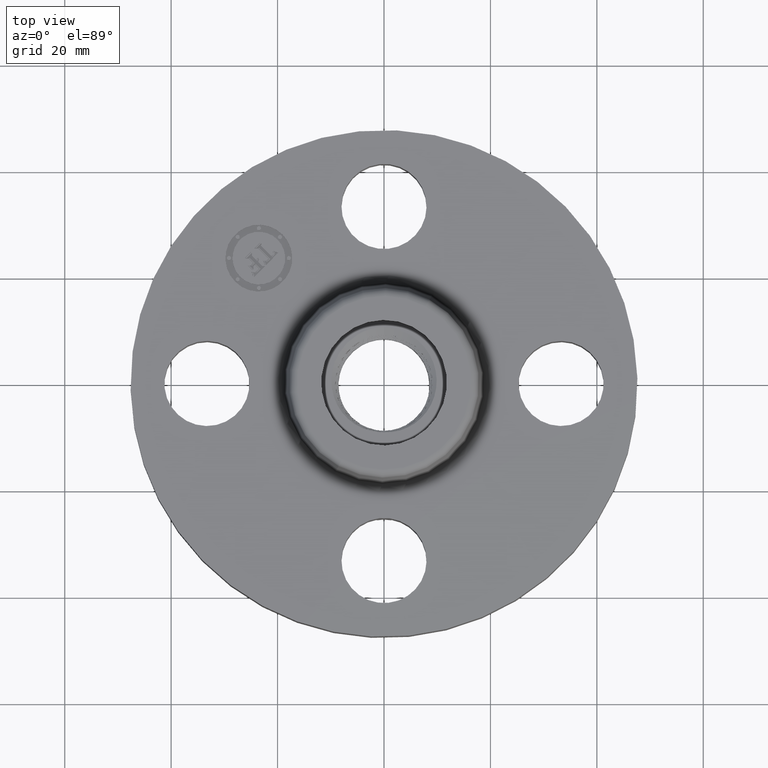
[diagram: clean part render]
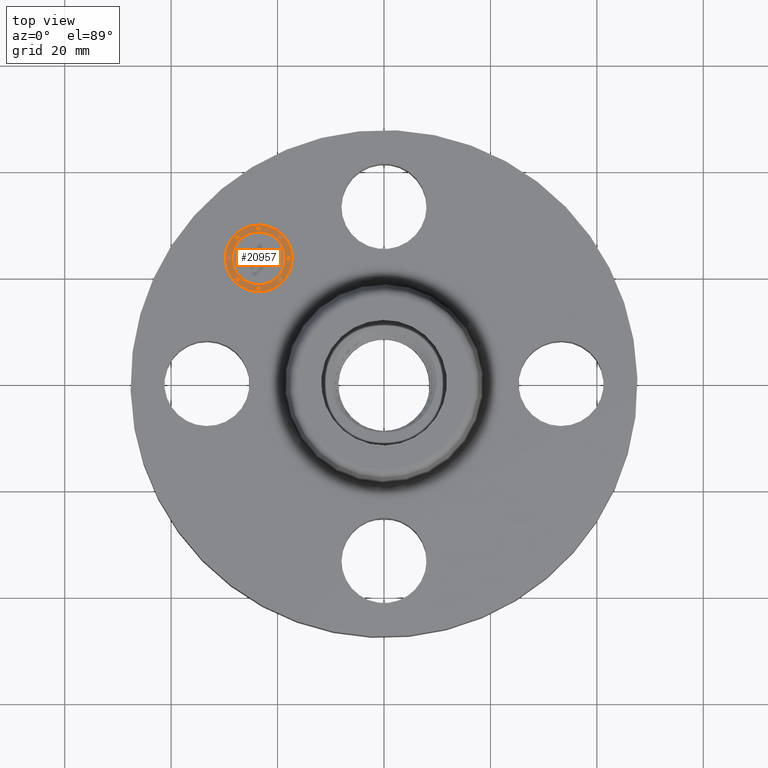
[diagram: same view with one face highlighted and labeled with its STEP entity id]
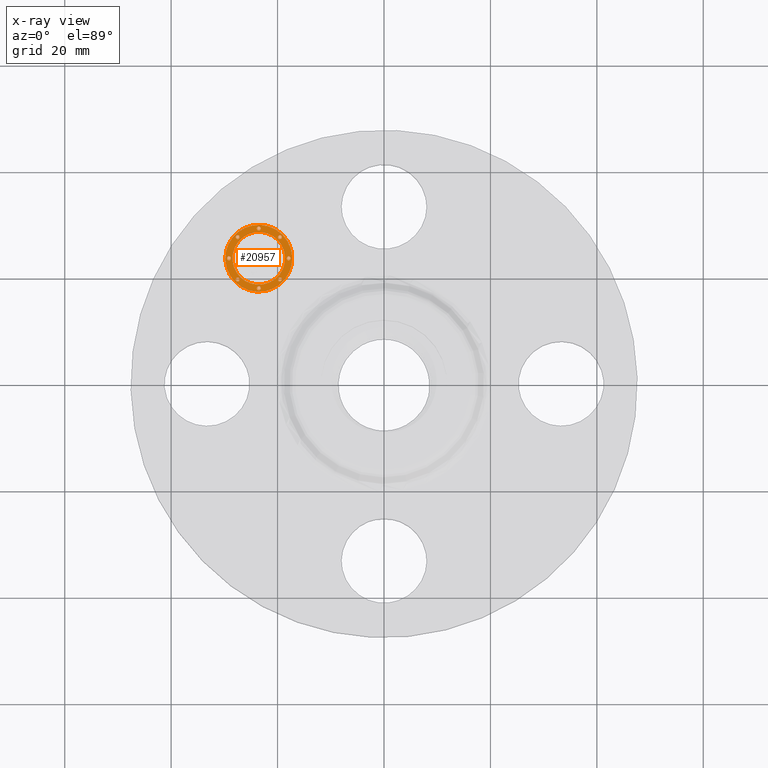
[diagram: x-ray of the same camera — body ghosted, the highlighted face saturated]
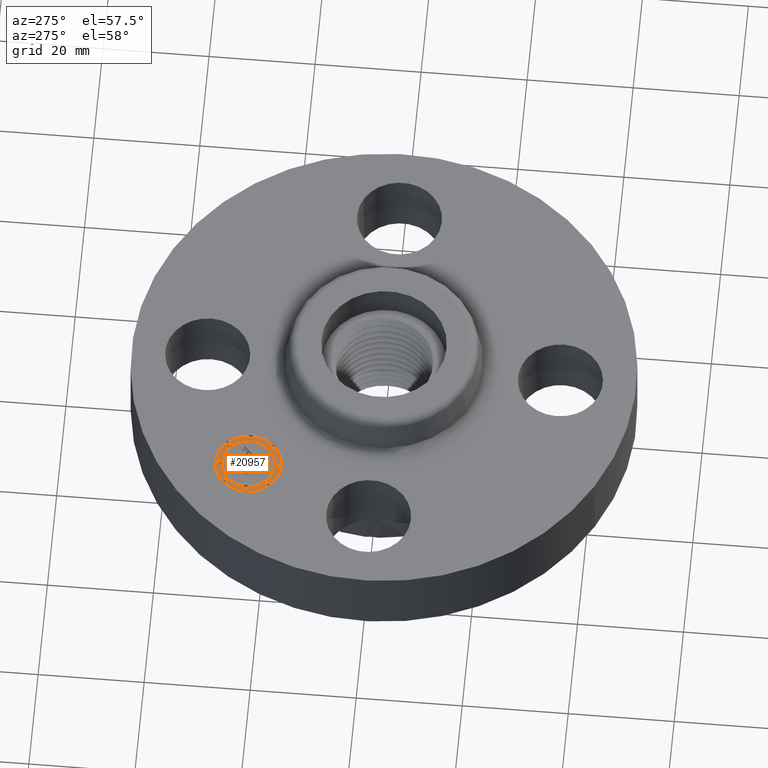
[diagram: same view with one face highlighted and labeled with its STEP entity id]
A machine part, top view. The second image highlights one B-rep face of the part: STEP entity #20957.
The next image is the same camera in x-ray: the body ghosted, the highlighted face saturated — about 0% of this face is hidden behind the body in this view.
A second angle (auxiliary view) of the same face is appended — the face is thin or edge-on in the first view.
In plain terms, the highlighted planar face has unit normal (0, -0, 1).
Its self-contained STEP definition (entity closure, byte-faithful):
#9608=AXIS2_PLACEMENT_3D('Plane Axis2P3D',#9605,#9606,#9607) ;
#20779=AXIS2_PLACEMENT_3D('Circle Axis2P3D',#20777,#20778,$) ;
#20788=AXIS2_PLACEMENT_3D('Circle Axis2P3D',#20786,#20787,$) ;
#20797=AXIS2_PLACEMENT_3D('Circle Axis2P3D',#20795,#20796,$) ;
#20806=AXIS2_PLACEMENT_3D('Circle Axis2P3D',#20804,#20805,$) ;
#20815=AXIS2_PLACEMENT_3D('Circle Axis2P3D',#20813,#20814,$) ;
#20824=AXIS2_PLACEMENT_3D('Circle Axis2P3D',#20822,#20823,$) ;
#20833=AXIS2_PLACEMENT_3D('Circle Axis2P3D',#20831,#20832,$) ;
#20842=AXIS2_PLACEMENT_3D('Circle Axis2P3D',#20840,#20841,$) ;
#20851=AXIS2_PLACEMENT_3D('Circle Axis2P3D',#20849,#20850,$) ;
#20860=AXIS2_PLACEMENT_3D('Circle Axis2P3D',#20858,#20859,$) ;
#20869=AXIS2_PLACEMENT_3D('Circle Axis2P3D',#20867,#20868,$) ;
#20878=AXIS2_PLACEMENT_3D('Circle Axis2P3D',#20876,#20877,$) ;
#20887=AXIS2_PLACEMENT_3D('Circle Axis2P3D',#20885,#20886,$) ;
#20896=AXIS2_PLACEMENT_3D('Circle Axis2P3D',#20894,#20895,$) ;
#20905=AXIS2_PLACEMENT_3D('Circle Axis2P3D',#20903,#20904,$) ;
#20914=AXIS2_PLACEMENT_3D('Circle Axis2P3D',#20912,#20913,$) ;
#20923=AXIS2_PLACEMENT_3D('Circle Axis2P3D',#20921,#20922,$) ;
#20932=AXIS2_PLACEMENT_3D('Circle Axis2P3D',#20930,#20931,$) ;
#20941=AXIS2_PLACEMENT_3D('Circle Axis2P3D',#20939,#20940,$) ;
#20950=AXIS2_PLACEMENT_3D('Circle Axis2P3D',#20948,#20949,$) ;
#9605=CARTESIAN_POINT('Axis2P3D Location',(0.,0.,0.545000000002)) ;
#20777=CARTESIAN_POINT('Axis2P3D Location',(-0.926309883358,0.926309883358,0.545000000002)) ;
#20781=CARTESIAN_POINT('Vertex',(-1.1013188117,0.751300955014,0.545000000002)) ;
#20783=CARTESIAN_POINT('Vertex',(-0.751300955014,1.1013188117,0.545000000002)) ;
#20786=CARTESIAN_POINT('Axis2P3D Location',(-0.926309883358,0.926309883358,0.545000000002)) ;
#20795=CARTESIAN_POINT('Axis2P3D Location',(-0.926309883358,0.926309883358,0.545000000002)) ;
#20799=CARTESIAN_POINT('Vertex',(-0.788424061026,1.06419570569,0.545000000002)) ;
#20801=CARTESIAN_POINT('Vertex',(-1.06419570569,0.788424061026,0.545000000002)) ;
#20804=CARTESIAN_POINT('Axis2P3D Location',(-0.926309883358,0.926309883358,0.545000000002)) ;
#20813=CARTESIAN_POINT('Axis2P3D Location',(-0.76986250802,0.76986250802,0.545000000002)) ;
#20817=CARTESIAN_POINT('Vertex',(-0.759255906302,0.780469109738,0.545000000002)) ;
#20819=CARTESIAN_POINT('Vertex',(-0.780469109738,0.759255906302,0.545000000002)) ;
#20822=CARTESIAN_POINT('Axis2P3D Location',(-0.76986250802,0.76986250802,0.545000000002)) ;
#20831=CARTESIAN_POINT('Axis2P3D Location',(-1.0827572587,0.76986250802,0.545000000002)) ;
#20835=CARTESIAN_POINT('Vertex',(-1.07215065698,0.780469109738,0.545000000002)) ;
#20837=CARTESIAN_POINT('Vertex',(-1.09336386041,0.759255906302,0.545000000002)) ;
#20840=CARTESIAN_POINT('Axis2P3D Location',(-1.0827572587,0.76986250802,0.545000000002)) ;
#20849=CARTESIAN_POINT('Axis2P3D Location',(-0.926309883358,0.705059883357,0.545000000002)) ;
#20853=CARTESIAN_POINT('Vertex',(-0.91570328164,0.715666485075,0.545000000002)) ;
#20855=CARTESIAN_POINT('Vertex',(-0.936916485076,0.694453281639,0.545000000002)) ;
#20858=CARTESIAN_POINT('Axis2P3D Location',(-0.926309883358,0.705059883357,0.545000000002)) ;
#20867=CARTESIAN_POINT('Axis2P3D Location',(-1.0827572587,1.0827572587,0.545000000002)) ;
#20871=CARTESIAN_POINT('Vertex',(-1.07215065698,1.09336386041,0.545000000002)) ;
#20873=CARTESIAN_POINT('Vertex',(-1.09336386041,1.07215065698,0.545000000002)) ;
#20876=CARTESIAN_POINT('Axis2P3D Location',(-1.0827572587,1.0827572587,0.545000000002)) ;
#20885=CARTESIAN_POINT('Axis2P3D Location',(-1.14755988336,0.926309883358,0.545000000002)) ;
#20889=CARTESIAN_POINT('Vertex',(-1.13695328164,0.936916485076,0.545000000002)) ;
#20891=CARTESIAN_POINT('Vertex',(-1.15816648508,0.91570328164,0.545000000002)) ;
#20894=CARTESIAN_POINT('Axis2P3D Location',(-1.14755988336,0.926309883358,0.545000000002)) ;
#20903=CARTESIAN_POINT('Axis2P3D Location',(-0.76986250802,1.0827572587,0.545000000002)) ;
#20907=CARTESIAN_POINT('Vertex',(-0.780469109738,1.07215065698,0.545000000002)) ;
#20909=CARTESIAN_POINT('Vertex',(-0.759255906302,1.09336386041,0.545000000002)) ;
#20912=CARTESIAN_POINT('Axis2P3D Location',(-0.76986250802,1.0827572587,0.545000000002)) ;
#20921=CARTESIAN_POINT('Axis2P3D Location',(-0.705059883357,0.926309883358,0.545000000002)) ;
#20925=CARTESIAN_POINT('Vertex',(-0.715666485075,0.91570328164,0.545000000002)) ;
#20927=CARTESIAN_POINT('Vertex',(-0.694453281639,0.936916485076,0.545000000002)) ;
#20930=CARTESIAN_POINT('Axis2P3D Location',(-0.705059883357,0.926309883358,0.545000000002)) ;
#20939=CARTESIAN_POINT('Axis2P3D Location',(-0.926309883358,1.14755988336,0.545000000002)) ;
#20943=CARTESIAN_POINT('Vertex',(-0.936916485076,1.13695328164,0.545000000002)) ;
#20945=CARTESIAN_POINT('Vertex',(-0.91570328164,1.15816648508,0.545000000002)) ;
#20948=CARTESIAN_POINT('Axis2P3D Location',(-0.926309883358,1.14755988336,0.545000000002)) ;
#9606=DIRECTION('Axis2P3D Direction',(0.,-0.,0.0393700787402)) ;
#9607=DIRECTION('Axis2P3D XDirection',(0.027838849653,0.027838849653,0.)) ;
#20778=DIRECTION('Axis2P3D Direction',(0.,-0.,0.0393700787402)) ;
#20787=DIRECTION('Axis2P3D Direction',(0.,-0.,0.0393700787402)) ;
#20796=DIRECTION('Axis2P3D Direction',(0.,-0.,0.0393700787402)) ;
#20805=DIRECTION('Axis2P3D Direction',(0.,-0.,0.0393700787402)) ;
#20814=DIRECTION('Axis2P3D Direction',(0.,-0.,0.0393700787402)) ;
#20823=DIRECTION('Axis2P3D Direction',(0.,-0.,0.0393700787402)) ;
#20832=DIRECTION('Axis2P3D Direction',(0.,-0.,0.0393700787402)) ;
#20841=DIRECTION('Axis2P3D Direction',(0.,-0.,0.0393700787402)) ;
#20850=DIRECTION('Axis2P3D Direction',(0.,-0.,0.0393700787402)) ;
#20859=DIRECTION('Axis2P3D Direction',(0.,-0.,0.0393700787402)) ;
#20868=DIRECTION('Axis2P3D Direction',(0.,-0.,0.0393700787402)) ;
#20877=DIRECTION('Axis2P3D Direction',(0.,-0.,0.0393700787402)) ;
#20886=DIRECTION('Axis2P3D Direction',(0.,-0.,0.0393700787402)) ;
#20895=DIRECTION('Axis2P3D Direction',(0.,-0.,0.0393700787402)) ;
#20904=DIRECTION('Axis2P3D Direction',(0.,-0.,0.0393700787402)) ;
#20913=DIRECTION('Axis2P3D Direction',(0.,-0.,0.0393700787402)) ;
#20922=DIRECTION('Axis2P3D Direction',(0.,-0.,0.0393700787402)) ;
#20931=DIRECTION('Axis2P3D Direction',(0.,-0.,0.0393700787402)) ;
#20940=DIRECTION('Axis2P3D Direction',(0.,-0.,0.0393700787402)) ;
#20949=DIRECTION('Axis2P3D Direction',(0.,-0.,0.0393700787402)) ;
#20792=ORIENTED_EDGE('',*,*,#20785,.T.) ;
#20793=ORIENTED_EDGE('',*,*,#20790,.T.) ;
#20810=ORIENTED_EDGE('',*,*,#20803,.F.) ;
#20811=ORIENTED_EDGE('',*,*,#20808,.F.) ;
#20828=ORIENTED_EDGE('',*,*,#20821,.F.) ;
#20829=ORIENTED_EDGE('',*,*,#20826,.F.) ;
#20846=ORIENTED_EDGE('',*,*,#20839,.F.) ;
#20847=ORIENTED_EDGE('',*,*,#20844,.F.) ;
#20864=ORIENTED_EDGE('',*,*,#20857,.F.) ;
#20865=ORIENTED_EDGE('',*,*,#20862,.F.) ;
#20882=ORIENTED_EDGE('',*,*,#20875,.F.) ;
#20883=ORIENTED_EDGE('',*,*,#20880,.F.) ;
#20900=ORIENTED_EDGE('',*,*,#20893,.F.) ;
#20901=ORIENTED_EDGE('',*,*,#20898,.F.) ;
#20918=ORIENTED_EDGE('',*,*,#20911,.F.) ;
#20919=ORIENTED_EDGE('',*,*,#20916,.F.) ;
#20936=ORIENTED_EDGE('',*,*,#20929,.F.) ;
#20937=ORIENTED_EDGE('',*,*,#20934,.F.) ;
#20954=ORIENTED_EDGE('',*,*,#20947,.F.) ;
#20955=ORIENTED_EDGE('',*,*,#20952,.F.) ;
#20812=FACE_BOUND('',#20809,.T.) ;
#20830=FACE_BOUND('',#20827,.T.) ;
#20848=FACE_BOUND('',#20845,.T.) ;
#20866=FACE_BOUND('',#20863,.T.) ;
#20884=FACE_BOUND('',#20881,.T.) ;
#20902=FACE_BOUND('',#20899,.T.) ;
#20920=FACE_BOUND('',#20917,.T.) ;
#20938=FACE_BOUND('',#20935,.T.) ;
#20956=FACE_BOUND('',#20953,.T.) ;
#20957=ADVANCED_FACE('PartBody',(#20794,#20812,#20830,#20848,#20866,#20884,#20902,#20920,#20938,#20956),#9609,.T.) ;
#20780=CIRCLE('generated circle',#20779,0.247500000001) ;
#20789=CIRCLE('generated circle',#20788,0.247500000001) ;
#20798=CIRCLE('generated circle',#20797,0.195000000001) ;
#20807=CIRCLE('generated circle',#20806,0.195000000001) ;
#20816=CIRCLE('generated circle',#20815,0.0150000000001) ;
#20825=CIRCLE('generated circle',#20824,0.0150000000001) ;
#20834=CIRCLE('generated circle',#20833,0.0150000000001) ;
#20843=CIRCLE('generated circle',#20842,0.0150000000001) ;
#20852=CIRCLE('generated circle',#20851,0.0150000000001) ;
#20861=CIRCLE('generated circle',#20860,0.0150000000001) ;
#20870=CIRCLE('generated circle',#20869,0.0150000000001) ;
#20879=CIRCLE('generated circle',#20878,0.0150000000001) ;
#20888=CIRCLE('generated circle',#20887,0.0150000000001) ;
#20897=CIRCLE('generated circle',#20896,0.0150000000001) ;
#20906=CIRCLE('generated circle',#20905,0.0150000000001) ;
#20915=CIRCLE('generated circle',#20914,0.0150000000001) ;
#20924=CIRCLE('generated circle',#20923,0.0150000000001) ;
#20933=CIRCLE('generated circle',#20932,0.0150000000001) ;
#20942=CIRCLE('generated circle',#20941,0.0150000000001) ;
#20951=CIRCLE('generated circle',#20950,0.0150000000001) ;
#20785=EDGE_CURVE('',#20782,#20784,#20780,.T.) ;
#20790=EDGE_CURVE('',#20784,#20782,#20789,.T.) ;
#20803=EDGE_CURVE('',#20800,#20802,#20798,.T.) ;
#20808=EDGE_CURVE('',#20802,#20800,#20807,.T.) ;
#20821=EDGE_CURVE('',#20818,#20820,#20816,.T.) ;
#20826=EDGE_CURVE('',#20820,#20818,#20825,.T.) ;
#20839=EDGE_CURVE('',#20836,#20838,#20834,.T.) ;
#20844=EDGE_CURVE('',#20838,#20836,#20843,.T.) ;
#20857=EDGE_CURVE('',#20854,#20856,#20852,.T.) ;
#20862=EDGE_CURVE('',#20856,#20854,#20861,.T.) ;
#20875=EDGE_CURVE('',#20872,#20874,#20870,.T.) ;
#20880=EDGE_CURVE('',#20874,#20872,#20879,.T.) ;
#20893=EDGE_CURVE('',#20890,#20892,#20888,.T.) ;
#20898=EDGE_CURVE('',#20892,#20890,#20897,.T.) ;
#20911=EDGE_CURVE('',#20908,#20910,#20906,.T.) ;
#20916=EDGE_CURVE('',#20910,#20908,#20915,.T.) ;
#20929=EDGE_CURVE('',#20926,#20928,#20924,.T.) ;
#20934=EDGE_CURVE('',#20928,#20926,#20933,.T.) ;
#20947=EDGE_CURVE('',#20944,#20946,#20942,.T.) ;
#20952=EDGE_CURVE('',#20946,#20944,#20951,.T.) ;
#20791=EDGE_LOOP('',(#20792,#20793)) ;
#20809=EDGE_LOOP('',(#20810,#20811)) ;
#20827=EDGE_LOOP('',(#20828,#20829)) ;
#20845=EDGE_LOOP('',(#20846,#20847)) ;
#20863=EDGE_LOOP('',(#20864,#20865)) ;
#20881=EDGE_LOOP('',(#20882,#20883)) ;
#20899=EDGE_LOOP('',(#20900,#20901)) ;
#20917=EDGE_LOOP('',(#20918,#20919)) ;
#20935=EDGE_LOOP('',(#20936,#20937)) ;
#20953=EDGE_LOOP('',(#20954,#20955)) ;
#20794=FACE_OUTER_BOUND('',#20791,.T.) ;
#9609=PLANE('',#9608) ;
#20782=VERTEX_POINT('',#20781) ;
#20784=VERTEX_POINT('',#20783) ;
#20800=VERTEX_POINT('',#20799) ;
#20802=VERTEX_POINT('',#20801) ;
#20818=VERTEX_POINT('',#20817) ;
#20820=VERTEX_POINT('',#20819) ;
#20836=VERTEX_POINT('',#20835) ;
#20838=VERTEX_POINT('',#20837) ;
#20854=VERTEX_POINT('',#20853) ;
#20856=VERTEX_POINT('',#20855) ;
#20872=VERTEX_POINT('',#20871) ;
#20874=VERTEX_POINT('',#20873) ;
#20890=VERTEX_POINT('',#20889) ;
#20892=VERTEX_POINT('',#20891) ;
#20908=VERTEX_POINT('',#20907) ;
#20910=VERTEX_POINT('',#20909) ;
#20926=VERTEX_POINT('',#20925) ;
#20928=VERTEX_POINT('',#20927) ;
#20944=VERTEX_POINT('',#20943) ;
#20946=VERTEX_POINT('',#20945) ;